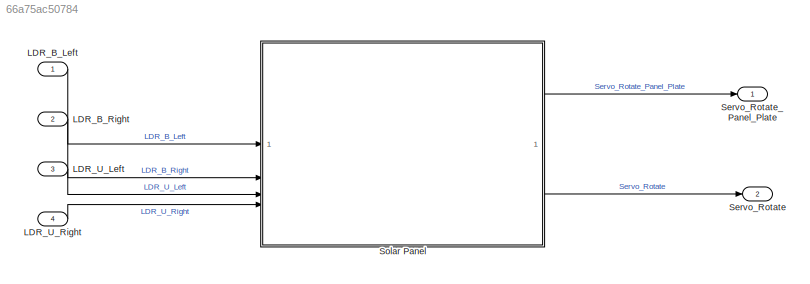
MODEL slx_66a75ac50784
KIND model
CONFIG AbsTol = auto
CONFIG EnableMultiTasking = on
CONFIG FixedStep = 1e-3
CONFIG MaxStep = auto
CONFIG MinStep = auto
CONFIG RelTol = 1e-3
CONFIG SampleTimeConstraint = Unconstrained
CONFIG SolverName = FixedStepDiscrete
CONFIG StartTime = 0.0
CONFIG StopTime = 10.0
BLOCK [Inport] LDR_B_Left
BLOCK [Inport] LDR_B_Right
  Port = 2
BLOCK [Inport] LDR_U_Left
  Port = 3
BLOCK [Inport] LDR_U_Right
  Port = 4
BLOCK [Outport] Servo_Rotate
  Port = 2
BLOCK [Outport] Servo_Rotate_Panel_Plate
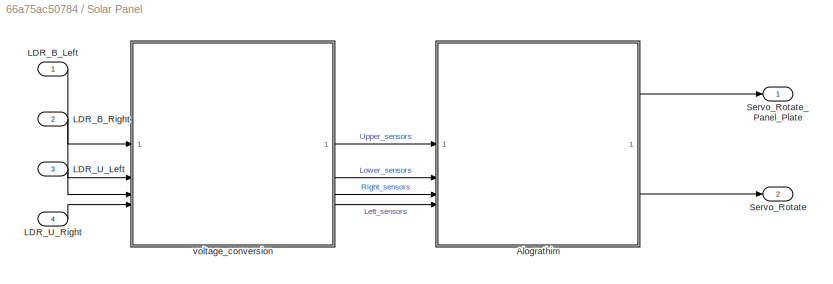
BLOCK [SubSystem] Solar Panel
  TreatAsAtomicUnit = on
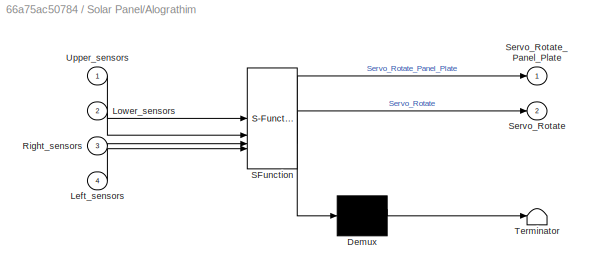
BLOCK [SubSystem] Solar Panel/Alograthim 
  ErrorFcn = Stateflow.Translate.translate
  PermitHierarchicalResolution = ExplicitOnly
  PortSchema = {"entries":[{"content":{"sides":[{"content":{"connectorIds":["In2","In1","In3","In4"]},"type":"ConnectorPlacement.EquallySpacedRectSide","uuid":"47346178-62f1-4af9-966f-6088c34d7d3a"},{"content":{"connectorIds":["Out1","Out2"],"side":"RIGHT"},"type":"ConnectorPlacement.EquallySpacedRectSide","uuid":"d42f0d69-c7c6-440d-b039-ff859220b6c7"},{"content":{"side":"TOP"},"type":"ConnectorPlacement.Equally...<+247ch>
  SFBlockType = Chart
  TreatAsAtomicUnit = on
BLOCK [Demux] Solar Panel/Alograthim / Demux 
  Outputs = 1
BLOCK [S-Function] Solar Panel/Alograthim / SFunction 
  EnableBusSupport = on
  FunctionName = sf_sfun
  PortCounts = [4 3]
  SFcnIsStateOwnerBlock = off
  SFunctionDeploymentMode = off
  Tag = Stateflow S-Function 3
BLOCK [Terminator] Solar Panel/Alograthim / Terminator 
BLOCK [Inport] Solar Panel/Alograthim /Left_sensors
  Port = 4
BLOCK [Inport] Solar Panel/Alograthim /Lower_sensors
  Port = 2
BLOCK [Inport] Solar Panel/Alograthim /Right_sensors
  Port = 3
BLOCK [Outport] Solar Panel/Alograthim /Servo_Rotate
  Port = 2
BLOCK [Outport] Solar Panel/Alograthim /Servo_Rotate_Panel_Plate
BLOCK [Inport] Solar Panel/Alograthim /Upper_sensors
BLOCK [Inport] Solar Panel/LDR_B_Left
BLOCK [Inport] Solar Panel/LDR_B_Right
  Port = 2
BLOCK [Inport] Solar Panel/LDR_U_Left
  Port = 3
BLOCK [Inport] Solar Panel/LDR_U_Right
  Port = 4
BLOCK [Outport] Solar Panel/Servo_Rotate
  Port = 2
BLOCK [Outport] Solar Panel/Servo_Rotate_Panel_Plate
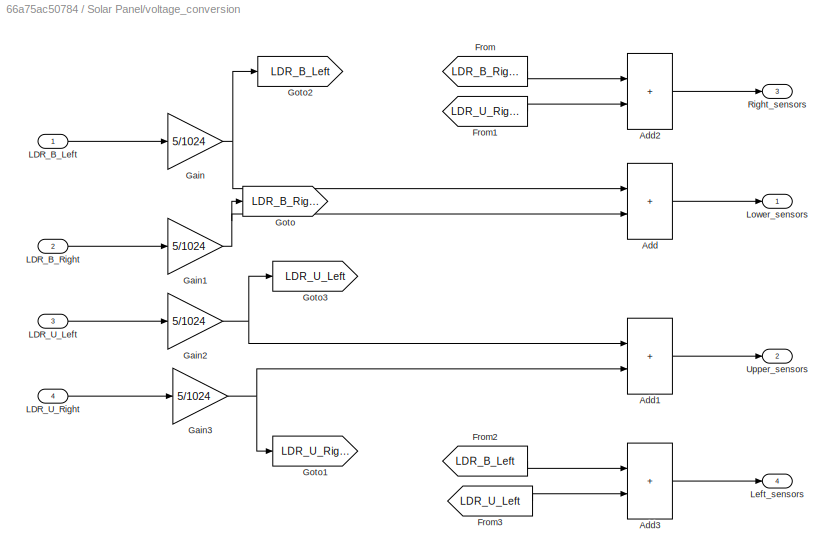
BLOCK [SubSystem] Solar Panel/voltage_conversion
BLOCK [Sum] Solar Panel/voltage_conversion/Add
  IconShape = rectangular
BLOCK [Sum] Solar Panel/voltage_conversion/Add1
  IconShape = rectangular
BLOCK [Sum] Solar Panel/voltage_conversion/Add2
  IconShape = rectangular
BLOCK [Sum] Solar Panel/voltage_conversion/Add3
  IconShape = rectangular
BLOCK [From] Solar Panel/voltage_conversion/From
  GotoTag = LDR_B_Right
BLOCK [From] Solar Panel/voltage_conversion/From1
  GotoTag = LDR_U_Right
BLOCK [From] Solar Panel/voltage_conversion/From2
  GotoTag = LDR_B_Left
BLOCK [From] Solar Panel/voltage_conversion/From3
  GotoTag = LDR_U_Left
BLOCK [Gain] Solar Panel/voltage_conversion/Gain
  Gain = 5/1024
BLOCK [Gain] Solar Panel/voltage_conversion/Gain1
  Gain = 5/1024
BLOCK [Gain] Solar Panel/voltage_conversion/Gain2
  Gain = 5/1024
BLOCK [Gain] Solar Panel/voltage_conversion/Gain3
  Gain = 5/1024
BLOCK [Goto] Solar Panel/voltage_conversion/Goto
  GotoTag = LDR_B_Right
BLOCK [Goto] Solar Panel/voltage_conversion/Goto1
  GotoTag = LDR_U_Right
BLOCK [Goto] Solar Panel/voltage_conversion/Goto2
  GotoTag = LDR_B_Left
BLOCK [Goto] Solar Panel/voltage_conversion/Goto3
  GotoTag = LDR_U_Left
BLOCK [Inport] Solar Panel/voltage_conversion/LDR_B_Left
BLOCK [Inport] Solar Panel/voltage_conversion/LDR_B_Right
  Port = 2
BLOCK [Inport] Solar Panel/voltage_conversion/LDR_U_Left
  Port = 3
BLOCK [Inport] Solar Panel/voltage_conversion/LDR_U_Right
  Port = 4
BLOCK [Outport] Solar Panel/voltage_conversion/Left_sensors
  Port = 4
BLOCK [Outport] Solar Panel/voltage_conversion/Lower_sensors
BLOCK [Outport] Solar Panel/voltage_conversion/Right_sensors
  Port = 3
BLOCK [Outport] Solar Panel/voltage_conversion/Upper_sensors
  Port = 2
LINE LDR_B_Left:1 -> Solar Panel:1
LINE LDR_B_Right:1 -> Solar Panel:2
LINE LDR_U_Left:1 -> Solar Panel:3
LINE LDR_U_Right:1 -> Solar Panel:4
LINE Solar Panel/Alograthim :1 -> Solar Panel/Servo_Rotate_Panel_Plate:1
LINE Solar Panel/Alograthim :2 -> Solar Panel/Servo_Rotate:1
LINE Solar Panel/LDR_B_Left:1 -> Solar Panel/voltage_conversion:1
LINE Solar Panel/LDR_B_Right:1 -> Solar Panel/voltage_conversion:2
LINE Solar Panel/LDR_U_Left:1 -> Solar Panel/voltage_conversion:3
LINE Solar Panel/LDR_U_Right:1 -> Solar Panel/voltage_conversion:4
LINE Solar Panel/voltage_conversion/Add1:1 -> Solar Panel/voltage_conversion/Upper_sensors:1
LINE Solar Panel/voltage_conversion/Add2:1 -> Solar Panel/voltage_conversion/Right_sensors:1
LINE Solar Panel/voltage_conversion/Add3:1 -> Solar Panel/voltage_conversion/Left_sensors:1
LINE Solar Panel/voltage_conversion/Add:1 -> Solar Panel/voltage_conversion/Lower_sensors:1
LINE Solar Panel/voltage_conversion/From1:1 -> Solar Panel/voltage_conversion/Add2:2
LINE Solar Panel/voltage_conversion/From2:1 -> Solar Panel/voltage_conversion/Add3:1
LINE Solar Panel/voltage_conversion/From3:1 -> Solar Panel/voltage_conversion/Add3:2
LINE Solar Panel/voltage_conversion/From:1 -> Solar Panel/voltage_conversion/Add2:1
NET Solar Panel/voltage_conversion/Gain1:1 -> Solar Panel/voltage_conversion/Add:2, Solar Panel/voltage_conversion/Goto:1
NET Solar Panel/voltage_conversion/Gain2:1 -> Solar Panel/voltage_conversion/Add1:1, Solar Panel/voltage_conversion/Goto3:1
NET Solar Panel/voltage_conversion/Gain3:1 -> Solar Panel/voltage_conversion/Add1:2, Solar Panel/voltage_conversion/Goto1:1
NET Solar Panel/voltage_conversion/Gain:1 -> Solar Panel/voltage_conversion/Add:1, Solar Panel/voltage_conversion/Goto2:1
LINE Solar Panel/voltage_conversion/LDR_B_Left:1 -> Solar Panel/voltage_conversion/Gain:1
LINE Solar Panel/voltage_conversion/LDR_B_Right:1 -> Solar Panel/voltage_conversion/Gain1:1
LINE Solar Panel/voltage_conversion/LDR_U_Left:1 -> Solar Panel/voltage_conversion/Gain2:1
LINE Solar Panel/voltage_conversion/LDR_U_Right:1 -> Solar Panel/voltage_conversion/Gain3:1
LINE Solar Panel/voltage_conversion:1 -> Solar Panel/Alograthim :2
LINE Solar Panel/voltage_conversion:2 -> Solar Panel/Alograthim :1
LINE Solar Panel/voltage_conversion:3 -> Solar Panel/Alograthim :3
LINE Solar Panel/voltage_conversion:4 -> Solar Panel/Alograthim :4
LINE Solar Panel:1 -> Servo_Rotate_Panel_Plate:1
LINE Solar Panel:2 -> Servo_Rotate:1
note: NET lines group one-source signal fan-out (src -> all destinations, sorted); 1:1 wires keep LINE
CHART Solar Panel/Alograthim  states=4 transitions=20
  STATE_LABEL 'Servo_land\n\nen:\ndu:\nServo_Rotate=servo_land(Right_sensors,Left_sensors);\n'
  STATE_LABEL 'servo_panel1\n\nen:\ndu:\nServo_Rotate_Panel_Plate=servo_panel(Upper_sensors,Lower_sensors);\n'
  STATE_LABEL 'Servo_out=servo_panel(Upper_sensors,Lower_sensors)'
  STATE_LABEL '/* speed */\n'
  STATE_LABEL '[abs(Upper_sensors-Lower_sensors)<=0.5]'
  STATE_LABEL '{Servo_out=0;}'
  STATE_LABEL '[Upper_sensors>Lower_sensors]'
  STATE_LABEL '{Servo_out=(Upper_sensors/2)*(255/5)*Step_angle;}'
  STATE_LABEL '{Servo_out=(Lower_sensors/2)*(255/5)*Step_angle;}'
  STATE_LABEL 'Servo_out_land=servo_land(Right_sensors,Left_sensors)'
  STATE_LABEL '/* speed */\n'
  STATE_LABEL '[abs(Right_sensors-Left_sensors)<=0.5]'
  STATE_LABEL '{Servo_out_land=0;}'
  STATE_LABEL '[Right_sensors>Left_sensors]'
  STATE_LABEL '{Servo_out_land=(Right_sensors/2)*(255/5)*Step_angle;}'
  STATE_LABEL '{Servo_out_land=(Left_sensors/2)*(255/5)*Step_angle;}'
CHART  states=0 transitions=0
